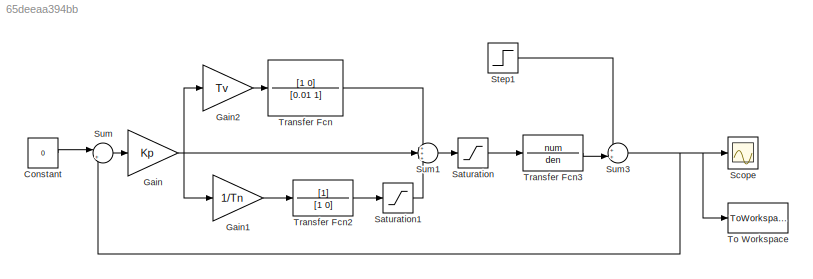
MODEL slx_65deeaa394bb
KIND model
CONFIG AbsTol = 1e-4
CONFIG EnableMultiTasking = off
CONFIG FixedStep = 1e-2
CONFIG MaxStep = auto
CONFIG MinStep = auto
CONFIG RelTol = 1e-4
CONFIG SampleTimeConstraint = Unconstrained
CONFIG SolverName = ode45
CONFIG StartTime = 0.0
CONFIG StopTime = 10.0
BLOCK [Constant] Constant
  Value = 0
BLOCK [Gain] Gain
  Gain = Kp
BLOCK [Gain] Gain1
  Gain = 1/Tn
BLOCK [Gain] Gain2
  Gain = Tv
BLOCK [Saturate] Saturation
  LowerLimit = lower_limit
  UpperLimit = upper_limit
BLOCK [Saturate] Saturation1
  LowerLimit = lower_limit
  UpperLimit = upper_limit
BLOCK [Scope] Scope
  Commented = on
  Floating = off
  NumInputPorts = 1
  ScopeSpecificationString = Simulink.scopes.TimeScopeBlockCfg('CurrentConfiguration', extmgr.ConfigurationSet(extmgr.Configuration('Core','General UI',true),extmgr.Configuration('Core','Source UI',true),extmgr.Configuration('Sources','WiredSimulink',true,'DataLoggingSaveFormat','StructureWithTime'),extmgr.Configuration('Visuals','Time Domain',true,'SerializedDisplays',{struct('MinYLimReal','-0.12501','MaxYLimReal','1.1251','...<+1490ch>
BLOCK [Step] Step1
  SampleTime = 0
  Time = 0
BLOCK [Sum] Sum
  Inputs = |+-
BLOCK [Sum] Sum1
  Inputs = +++
BLOCK [Sum] Sum3
  Inputs = ++|
BLOCK [ToWorkspace] To Workspace
  FixptAsFi = on
  MaxDataPoints = inf
  SampleTime = -1
  SaveFormat = Structure With Time
  VariableName = simout
BLOCK [TransferFcn] Transfer Fcn
  Denominator = [0.01 1]
  Numerator = [1 0]
BLOCK [TransferFcn] Transfer Fcn2
  Denominator = [1 0]
BLOCK [TransferFcn] Transfer Fcn3
  Denominator = den
  Numerator = num
LINE Constant:1 -> Sum:1
LINE Gain1:1 -> Transfer Fcn2:1
LINE Gain2:1 -> Transfer Fcn:1
NET Gain:1 -> Gain1:1, Gain2:1, Sum1:2
LINE Saturation1:1 -> Sum1:3
LINE Saturation:1 -> Transfer Fcn3:1
LINE Step1:1 -> Sum3:1
LINE Sum1:1 -> Saturation:1
NET Sum3:1 -> Scope:1, Sum:2, To Workspace:1
LINE Sum:1 -> Gain:1
LINE Transfer Fcn2:1 -> Saturation1:1
LINE Transfer Fcn3:1 -> Sum3:2
LINE Transfer Fcn:1 -> Sum1:1
note: NET lines group one-source signal fan-out (src -> all destinations, sorted); 1:1 wires keep LINE
